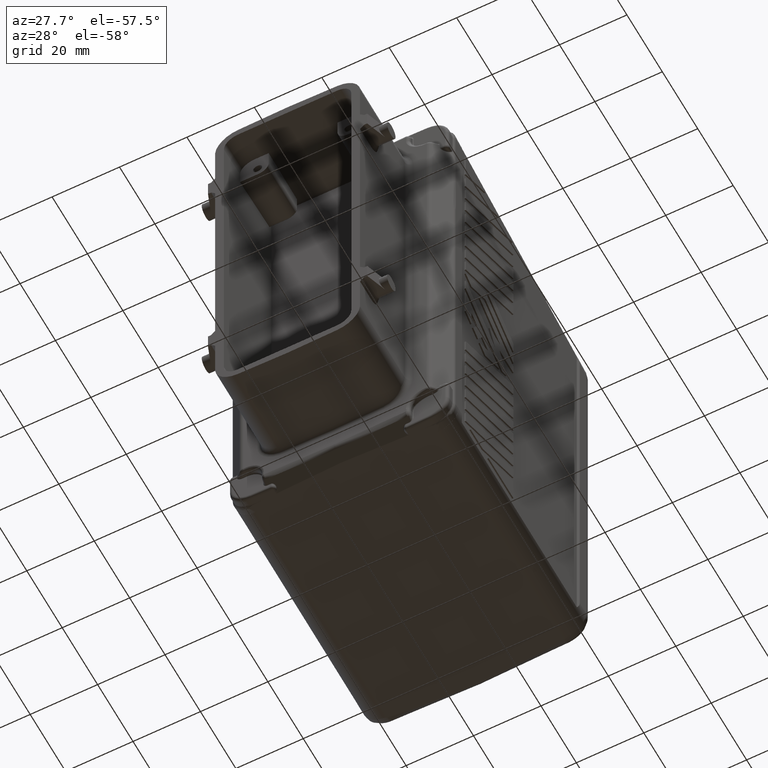
[diagram: clean part render]
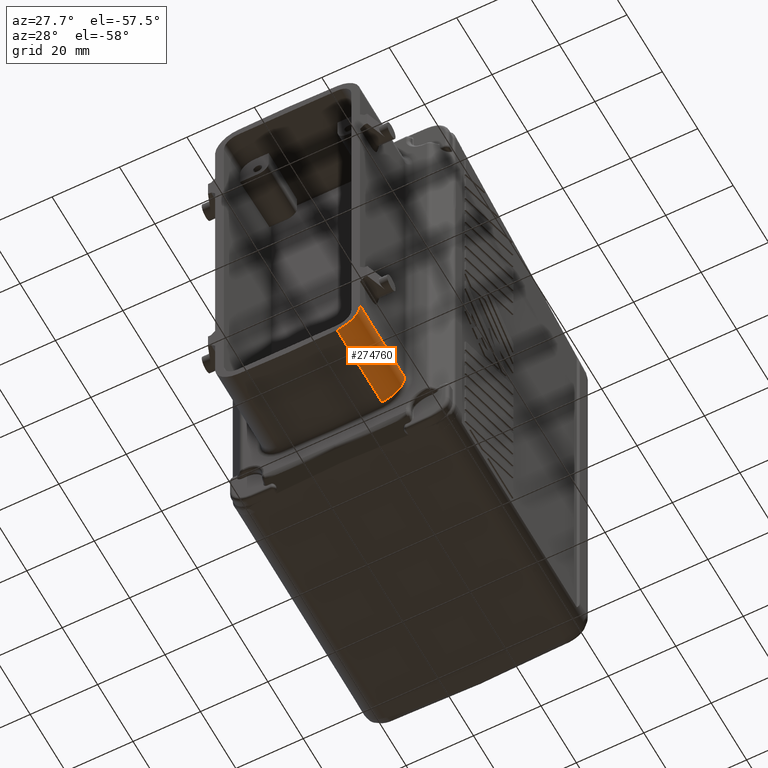
[diagram: same view with one face highlighted and labeled with its STEP entity id]
A machine part, auxiliary view. The second image highlights one B-rep face of the part: STEP entity #274760.
In plain terms, the highlighted cylindrical surface (edge-blend (fillet) strip) has radius 7 mm, axis along (-0, 1, 0).
Its self-contained STEP definition (entity closure, byte-faithful):
#186010=CARTESIAN_POINT('',(68.1097475108448,19.7807545245883,
-56.9572958031297));
#186020=VERTEX_POINT('',#186010);
#186050=CARTESIAN_POINT('',(61.1204348649462,19.780754524589,
-56.5706321937552));
#186060=DIRECTION('',(-2.40356057059527E-31,1.,1.62312834311911E-32));
#186070=DIRECTION('',(1.,2.40356057059527E-31,0.));
#186080=AXIS2_PLACEMENT_3D('',#186050,#186060,#186070);
#186090=CIRCLE('',#186080,7.);
#186100=CARTESIAN_POINT('',(61.3036735031013,19.780754524589,
-63.5682334685841));
#186110=VERTEX_POINT('',#186100);
#186120=EDGE_CURVE('',#186020,#186110,#186090,.T.);
#197120=CARTESIAN_POINT('',(68.1204348649462,45.036608000024,
-56.5706321937552));
#197130=VERTEX_POINT('',#197120);
#197160=CARTESIAN_POINT('',(68.1204348649462,20.0000000000222,
-56.5706321937552));
#197170=DIRECTION('',(-2.40356057059527E-31,1.,1.62312834311911E-32));
#197180=VECTOR('',#197170,1.);
#197190=LINE('',#197160,#197180);
#197200=CARTESIAN_POINT('',(68.1204348649462,19.7826389934702,
-56.5706321937552));
#197210=VERTEX_POINT('',#197200);
#197220=EDGE_CURVE('',#197210,#197130,#197190,.T.);
#274450=CARTESIAN_POINT('',(61.1204348649462,20.0000000000222,
-56.5706321937552));
#274460=DIRECTION('',(-2.40356057059527E-31,1.,1.62312834311911E-32));
#274470=DIRECTION('',(1.,2.40356057059527E-31,0.));
#274480=AXIS2_PLACEMENT_3D('',#274450,#274460,#274470);
#274490=CYLINDRICAL_SURFACE('',#274480,7.);
#274500=CARTESIAN_POINT('',(61.3036735031013,20.0000000000222,
-63.5682334685841));
#274510=DIRECTION('',(-2.40356057059527E-31,1.,1.62312834311911E-32));
#274520=VECTOR('',#274510,1.);
#274530=LINE('',#274500,#274520);
#274540=CARTESIAN_POINT('',(61.3036735031014,45.036608000024,
-63.568233468584));
#274550=VERTEX_POINT('',#274540);
#274560=EDGE_CURVE('',#186110,#274550,#274530,.T.);
#274570=ORIENTED_EDGE('',*,*,#274560,.T.);
#274580=ORIENTED_EDGE('',*,*,#186120,.T.);
#274590=CARTESIAN_POINT('',(61.1204348649462,18.5483501285113,
-56.5706321937552));
#274600=DIRECTION('',(0.173648177666952,-0.984807753012204,
-2.20070172139E-14));
#274610=DIRECTION('',(0.984807753012204,0.173648177666952,
-1.2480799662919E-13));
#274620=AXIS2_PLACEMENT_3D('',#274590,#274600,#274610);
#274630=ELLIPSE('',#274620,7.10798628320024,7.);
#274640=EDGE_CURVE('',#186020,#197210,#274630,.T.);
#274650=ORIENTED_EDGE('',*,*,#274640,.F.);
#274660=ORIENTED_EDGE('',*,*,#197220,.F.);
#274670=CARTESIAN_POINT('',(61.1204348649462,45.036608000024,
-56.5706321937552));
#274680=DIRECTION('',(-2.40356057059527E-31,1.,1.62312834311911E-32));
#274690=DIRECTION('',(1.,2.40356057059527E-31,0.));
#274700=AXIS2_PLACEMENT_3D('',#274670,#274680,#274690);
#274710=CIRCLE('',#274700,7.00000000000001);
#274720=EDGE_CURVE('',#197130,#274550,#274710,.T.);
#274730=ORIENTED_EDGE('',*,*,#274720,.F.);
#274740=EDGE_LOOP('',(#274730,#274660,#274650,#274580,#274570));
#274750=FACE_OUTER_BOUND('',#274740,.T.);
#274760=ADVANCED_FACE('',(#274750),#274490,.T.);